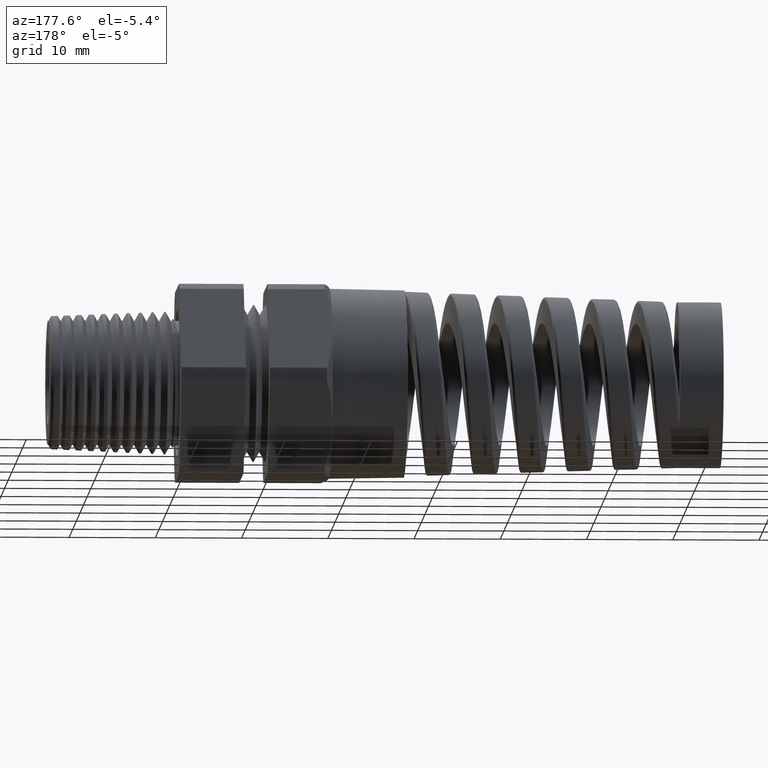
[diagram: clean part render]
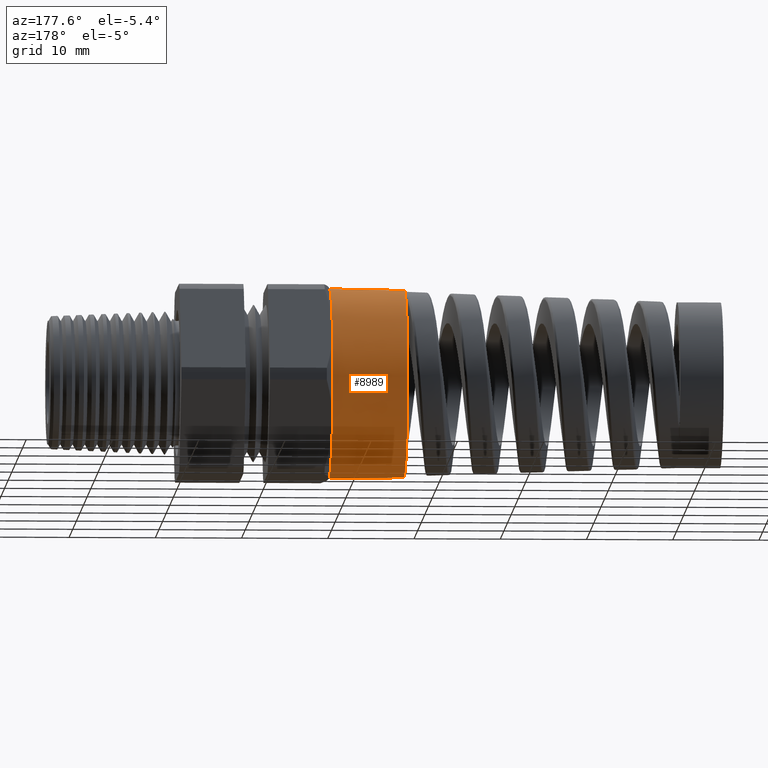
[diagram: same view with one face highlighted and labeled with its STEP entity id]
A machine part, auxiliary view. The second image highlights one B-rep face of the part: STEP entity #8989.
In plain terms, the highlighted conical surface has half-angle 1 deg.
Its self-contained STEP definition (entity closure, byte-faithful):
#418 = EDGE_CURVE ( 'NONE', #10714, #430, #2984, .T. ) ;
#430 = VERTEX_POINT ( 'NONE', #3027 ) ;
#434 = VERTEX_POINT ( 'NONE', #3018 ) ;
#435 = VERTEX_POINT ( 'NONE', #3086 ) ;
#436 = EDGE_CURVE ( 'NONE', #434, #430, #3085, .T. ) ;
#1363 = EDGE_CURVE ( 'NONE', #435, #1369, #9672, .T. ) ;
#1369 = VERTEX_POINT ( 'NONE', #9663 ) ;
#2981 = DIRECTION ( 'NONE',  ( 0.0000000000000000000, 0.0000000000000000000, 1.000000000000000000 ) ) ;
#2982 = DIRECTION ( 'NONE',  ( -1.000000000000000000, 0.0000000000000000000, 0.0000000000000000000 ) ) ;
#2983 = AXIS2_PLACEMENT_3D ( 'NONE', #2988, #2982, #2981 ) ;
#2984 = CIRCLE ( 'NONE', #2983, 0.4350000000000000000 ) ;
#2988 = CARTESIAN_POINT ( 'NONE',  ( -0.6937499999999999800, 0.0000000000000000000, 0.0000000000000000000 ) ) ;
#3018 = CARTESIAN_POINT ( 'NONE',  ( -1.035990000000000000, -5.290634469881254700E-017, -0.4290261785789668000 ) ) ;
#3027 = CARTESIAN_POINT ( 'NONE',  ( -0.6937499999999999800, 0.0000000000000000000, -0.4350000000000001600 ) ) ;
#3082 = DIRECTION ( 'NONE',  ( 0.9998476951563912700, -2.137303368083796300E-018, -0.01745240643728355000 ) ) ;
#3083 = VECTOR ( 'NONE', #3082, 39.37007874015748100 ) ;
#3084 = CARTESIAN_POINT ( 'NONE',  ( -0.6937499999999999800, -5.327213576290986400E-017, -0.4350000000000000000 ) ) ;
#3085 = LINE ( 'NONE', #3084, #3083 ) ;
#3086 = CARTESIAN_POINT ( 'NONE',  ( -1.035990000000000000, 0.0000000000000000000, 0.4290261785789668000 ) ) ;
#5819 = CARTESIAN_POINT ( 'NONE',  ( -1.035990000000000000, 0.0000000000000000000, 0.0000000000000000000 ) ) ;
#5899 = DIRECTION ( 'NONE',  ( 0.0000000000000000000, 0.0000000000000000000, 1.000000000000000000 ) ) ;
#5901 = DIRECTION ( 'NONE',  ( -1.000000000000000000, 0.0000000000000000000, 0.0000000000000000000 ) ) ;
#5902 = AXIS2_PLACEMENT_3D ( 'NONE', #5819, #5901, #5899 ) ;
#5903 = CIRCLE ( 'NONE', #5902, 0.4290261785789668000 ) ;
#7616 = CARTESIAN_POINT ( 'NONE',  ( -0.6937499999999999800, 0.3767210506462307900, 0.2175000000000000800 ) ) ;
#7761 = CARTESIAN_POINT ( 'NONE',  ( -0.6937499999999999800, 0.3767210506462308500, -0.2174999999999999400 ) ) ;
#8430 = CARTESIAN_POINT ( 'NONE',  ( -0.6937499999999999800, 0.0000000000000000000, 0.0000000000000000000 ) ) ;
#8431 = CONICAL_SURFACE ( 'NONE', #8471, 0.4350000000000000000, 0.01745329251994333400 ) ;
#8433 = DIRECTION ( 'NONE',  ( 1.000000000000000000, 0.0000000000000000000, 0.0000000000000000000 ) ) ;
#8435 = FACE_OUTER_BOUND ( 'NONE', #8966, .T. ) ;
#8470 = DIRECTION ( 'NONE',  ( 0.0000000000000000000, 0.0000000000000000000, 1.000000000000000000 ) ) ;
#8471 = AXIS2_PLACEMENT_3D ( 'NONE', #8430, #8433, #8470 ) ;
#8521 = EDGE_CURVE ( 'NONE', #1369, #10232, #11112, .T. ) ;
#8529 = EDGE_CURVE ( 'NONE', #10232, #10714, #11054, .T. ) ;
#8697 = EDGE_CURVE ( 'NONE', #435, #434, #5903, .T. ) ;
#8960 = ORIENTED_EDGE ( 'NONE', *, *, #436, .F. ) ;
#8962 = ORIENTED_EDGE ( 'NONE', *, *, #8697, .F. ) ;
#8963 = ORIENTED_EDGE ( 'NONE', *, *, #418, .T. ) ;
#8964 = ORIENTED_EDGE ( 'NONE', *, *, #1363, .T. ) ;
#8965 = ORIENTED_EDGE ( 'NONE', *, *, #8521, .T. ) ;
#8966 = EDGE_LOOP ( 'NONE', ( #8960, #8962, #8964, #8965, #8977, #8963 ) ) ;
#8977 = ORIENTED_EDGE ( 'NONE', *, *, #8529, .T. ) ;
#8989 = ADVANCED_FACE ( 'NONE', ( #8435 ), #8431, .T. ) ;
#9663 = CARTESIAN_POINT ( 'NONE',  ( -0.6937499999999999800, 0.0000000000000000000, 0.4350000000000000000 ) ) ;
#9669 = DIRECTION ( 'NONE',  ( 0.9998476951563912700, 0.0000000000000000000, 0.01745240643728355000 ) ) ;
#9670 = VECTOR ( 'NONE', #9669, 39.37007874015748100 ) ;
#9671 = CARTESIAN_POINT ( 'NONE',  ( -0.6937499999999999800, 0.0000000000000000000, 0.4350000000000000000 ) ) ;
#9672 = LINE ( 'NONE', #9671, #9670 ) ;
#10232 = VERTEX_POINT ( 'NONE', #7616 ) ;
#10714 = VERTEX_POINT ( 'NONE', #7761 ) ;
#11051 = DIRECTION ( 'NONE',  ( 0.0000000000000000000, 0.0000000000000000000, 1.000000000000000000 ) ) ;
#11052 = DIRECTION ( 'NONE',  ( -1.000000000000000000, 0.0000000000000000000, 0.0000000000000000000 ) ) ;
#11053 = AXIS2_PLACEMENT_3D ( 'NONE', #11059, #11052, #11051 ) ;
#11054 = CIRCLE ( 'NONE', #11053, 0.4350000000000000000 ) ;
#11059 = CARTESIAN_POINT ( 'NONE',  ( -0.6937499999999999800, 0.0000000000000000000, 0.0000000000000000000 ) ) ;
#11062 = DIRECTION ( 'NONE',  ( 0.0000000000000000000, 0.0000000000000000000, 1.000000000000000000 ) ) ;
#11063 = DIRECTION ( 'NONE',  ( -1.000000000000000000, 0.0000000000000000000, 0.0000000000000000000 ) ) ;
#11064 = CARTESIAN_POINT ( 'NONE',  ( -0.6937499999999999800, 0.0000000000000000000, 0.0000000000000000000 ) ) ;
#11065 = AXIS2_PLACEMENT_3D ( 'NONE', #11064, #11063, #11062 ) ;
#11112 = CIRCLE ( 'NONE', #11065, 0.4350000000000000000 ) ;